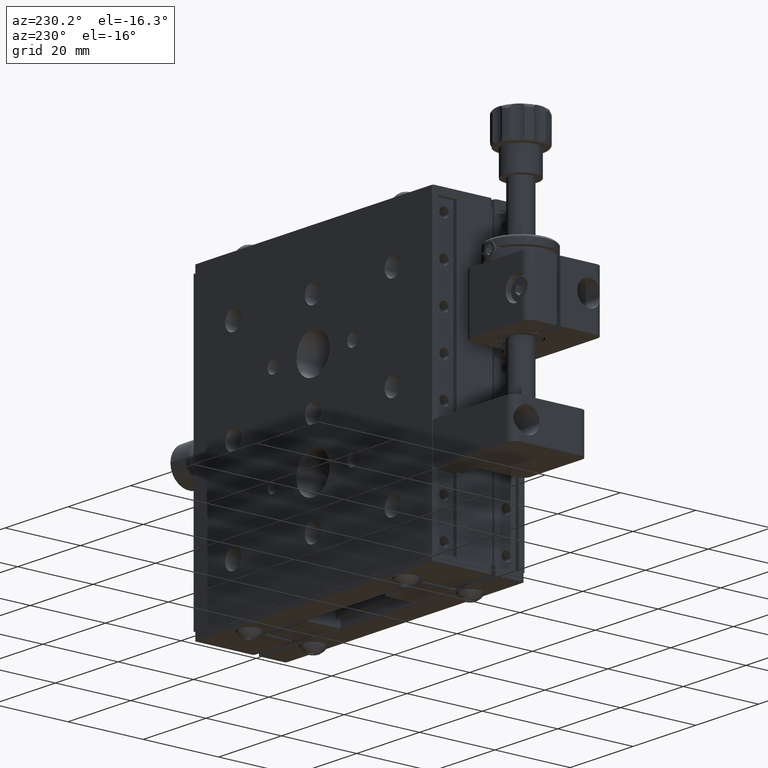
[diagram: clean part render]
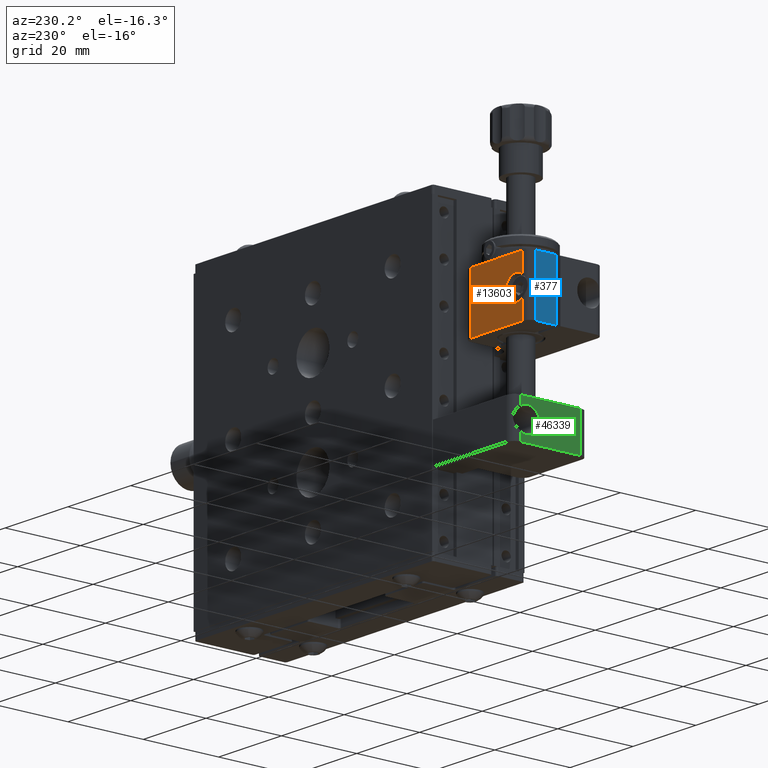
[diagram: same view with three faces highlighted in distinct colors, each labeled with its STEP entity id]
A machine part, auxiliary view with three faces highlighted in distinct colors.
Their STEP definitions:

[orange] entity #13603 — the highlighted planar face has unit normal (-0, 1, 0).
#612 = VERTEX_POINT ( 'NONE', #31382 ) ;
#692 = CARTESIAN_POINT ( 'NONE',  ( -48.75019253063127400, 5.045865631787219900, 125.0999999999999400 ) ) ;
#1394 = CARTESIAN_POINT ( 'NONE',  ( -48.75019253063127400, 5.045865631787219900, 128.3499999999999400 ) ) ;
#2337 = LINE ( 'NONE', #46738, #24564 ) ;
#2456 = CARTESIAN_POINT ( 'NONE',  ( -50.75019253063126700, 5.045865631787223500, 132.5999999999999700 ) ) ;
#4702 = VECTOR ( 'NONE', #27327, 1000.000000000000000 ) ;
#5478 = LINE ( 'NONE', #47603, #55383 ) ;
#7293 = ORIENTED_EDGE ( 'NONE', *, *, #23126, .F. ) ;
#9172 = VERTEX_POINT ( 'NONE', #16545 ) ;
#9690 = FACE_OUTER_BOUND ( 'NONE', #31144, .T. ) ;
#10022 = ORIENTED_EDGE ( 'NONE', *, *, #41751, .F. ) ;
#10945 = LINE ( 'NONE', #26748, #4702 ) ;
#11182 = ORIENTED_EDGE ( 'NONE', *, *, #27942, .F. ) ;
#13101 = CARTESIAN_POINT ( 'NONE',  ( -50.75019253063126700, 5.045865631787236800, 139.5999999999999700 ) ) ;
#13603 = ADVANCED_FACE ( 'NONE', ( #9690 ), #56304, .T. ) ;
#13897 = CIRCLE ( 'NONE', #56265, 3.250000000000002700 ) ;
#14771 = VERTEX_POINT ( 'NONE', #54504 ) ;
#15987 = CARTESIAN_POINT ( 'NONE',  ( -48.75019253063127400, 5.045865631787219900, 125.0999999999999400 ) ) ;
#16545 = CARTESIAN_POINT ( 'NONE',  ( -34.25019253063126700, 5.045865631787235000, 117.6000000000000500 ) ) ;
#17015 = ORIENTED_EDGE ( 'NONE', *, *, #26443, .T. ) ;
#18401 = CARTESIAN_POINT ( 'NONE',  ( -48.75019253063127400, 5.045865631787219900, 121.8499999999999400 ) ) ;
#19951 = VECTOR ( 'NONE', #52405, 1000.000000000000000 ) ;
#20325 = DIRECTION ( 'NONE',  ( -3.538501282865115300E-016, 5.551115123126275700E-017, -1.000000000000000000 ) ) ;
#22817 = LINE ( 'NONE', #44201, #37341 ) ;
#23126 = EDGE_CURVE ( 'NONE', #51123, #29201, #41391, .T. ) ;
#24564 = VECTOR ( 'NONE', #20325, 1000.000000000000000 ) ;
#24581 = VERTEX_POINT ( 'NONE', #18401 ) ;
#24722 = CARTESIAN_POINT ( 'NONE',  ( -50.75019253063126700, 5.045865631787219900, 127.6617376914898300 ) ) ;
#26316 = AXIS2_PLACEMENT_3D ( 'NONE', #29842, #30811, #39270 ) ;
#26443 = EDGE_CURVE ( 'NONE', #14771, #9172, #22817, .T. ) ;
#26748 = CARTESIAN_POINT ( 'NONE',  ( -52.75019253063126700, 5.045865631787219900, 132.5999999999999700 ) ) ;
#27327 = DIRECTION ( 'NONE',  ( -1.000000000000000000, -1.396345096814190600E-015, 4.807811143335905100E-016 ) ) ;
#27639 = CIRCLE ( 'NONE', #34746, 3.250000000000002700 ) ;
#27942 = EDGE_CURVE ( 'NONE', #29201, #41559, #27639, .T. ) ;
#29201 = VERTEX_POINT ( 'NONE', #24722 ) ;
#29842 = CARTESIAN_POINT ( 'NONE',  ( -34.25019253063126000, 5.045865631787242100, 139.6000000000002500 ) ) ;
#30811 = DIRECTION ( 'NONE',  ( -1.396345096814194500E-015, 1.000000000000000000, 5.551115123126325000E-017 ) ) ;
#31144 = EDGE_LOOP ( 'NONE', ( #11182, #7293, #39111, #17015, #10022, #32470, #44540, #35567 ) ) ;
#31382 = CARTESIAN_POINT ( 'NONE',  ( -50.75019253063127400, 5.045865631787216400, 122.5382623085101700 ) ) ;
#31738 = DIRECTION ( 'NONE',  ( -1.396345096814194700E-015, 1.000000000000000000, 5.551115123125289700E-017 ) ) ;
#32358 = DIRECTION ( 'NONE',  ( 0.0000000000000000000, 0.0000000000000000000, -1.000000000000000000 ) ) ;
#32470 = ORIENTED_EDGE ( 'NONE', *, *, #55536, .F. ) ;
#34746 = AXIS2_PLACEMENT_3D ( 'NONE', #692, #31738, #36123 ) ;
#35567 = ORIENTED_EDGE ( 'NONE', *, *, #49885, .F. ) ;
#36123 = DIRECTION ( 'NONE',  ( 0.0000000000000000000, 0.0000000000000000000, -1.000000000000000000 ) ) ;
#36766 = CARTESIAN_POINT ( 'NONE',  ( -48.75019253063127400, 5.045865631787219900, 125.0999999999999400 ) ) ;
#37341 = VECTOR ( 'NONE', #53494, 1000.000000000000000 ) ;
#37346 = DIRECTION ( 'NONE',  ( -1.396345096814194700E-015, 1.000000000000000000, 5.551115123125289700E-017 ) ) ;
#37460 = DIRECTION ( 'NONE',  ( 0.0000000000000000000, 0.0000000000000000000, -1.000000000000000000 ) ) ;
#38193 = EDGE_CURVE ( 'NONE', #14771, #51123, #10945, .T. ) ;
#39058 = CARTESIAN_POINT ( 'NONE',  ( -50.75019253063127400, 5.045865631787212800, 117.6000000000000500 ) ) ;
#39111 = ORIENTED_EDGE ( 'NONE', *, *, #38193, .F. ) ;
#39120 = DIRECTION ( 'NONE',  ( 1.000000000000000000, 1.396345096814190600E-015, -3.538501282865062500E-016 ) ) ;
#39270 = DIRECTION ( 'NONE',  ( -3.538501282865115300E-016, 5.551115123126275700E-017, -1.000000000000000000 ) ) ;
#39735 = AXIS2_PLACEMENT_3D ( 'NONE', #36766, #37346, #32358 ) ;
#41391 = LINE ( 'NONE', #13101, #19951 ) ;
#41559 = VERTEX_POINT ( 'NONE', #1394 ) ;
#41751 = EDGE_CURVE ( 'NONE', #51323, #9172, #5478, .T. ) ;
#44201 = CARTESIAN_POINT ( 'NONE',  ( -34.25019253063126000, 5.045865631787242100, 139.6000000000002500 ) ) ;
#44540 = ORIENTED_EDGE ( 'NONE', *, *, #46999, .F. ) ;
#46738 = CARTESIAN_POINT ( 'NONE',  ( -50.75019253063126700, 5.045865631787236800, 139.5999999999999700 ) ) ;
#46811 = CIRCLE ( 'NONE', #39735, 3.250000000000002700 ) ;
#46999 = EDGE_CURVE ( 'NONE', #24581, #612, #13897, .T. ) ;
#47603 = CARTESIAN_POINT ( 'NONE',  ( -34.25019253063126700, 5.045865631787235000, 117.6000000000000500 ) ) ;
#49885 = EDGE_CURVE ( 'NONE', #41559, #24581, #46811, .T. ) ;
#51123 = VERTEX_POINT ( 'NONE', #2456 ) ;
#51323 = VERTEX_POINT ( 'NONE', #39058 ) ;
#52405 = DIRECTION ( 'NONE',  ( -3.538501282865115300E-016, 5.551115123126275700E-017, -1.000000000000000000 ) ) ;
#53494 = DIRECTION ( 'NONE',  ( -3.538501282865115300E-016, 5.551115123126275700E-017, -1.000000000000000000 ) ) ;
#54504 = CARTESIAN_POINT ( 'NONE',  ( -34.25019253063125300, 5.045865631787245700, 132.6000000000002200 ) ) ;
#55383 = VECTOR ( 'NONE', #39120, 1000.000000000000000 ) ;
#55536 = EDGE_CURVE ( 'NONE', #612, #51323, #2337, .T. ) ;
#55824 = DIRECTION ( 'NONE',  ( -1.396345096814194700E-015, 1.000000000000000000, 5.551115123125289700E-017 ) ) ;
#56265 = AXIS2_PLACEMENT_3D ( 'NONE', #15987, #55824, #37460 ) ;
#56304 = PLANE ( 'NONE',  #26316 ) ;

[blue] entity #377 — the highlighted planar face has unit normal (-1, -0, 0).
#377 = ADVANCED_FACE ( 'NONE', ( #11963 ), #6718, .T. ) ;
#566 = CARTESIAN_POINT ( 'NONE',  ( -52.75019253063127400, 3.045865631787192800, 117.6000000000000500 ) ) ;
#1461 = VERTEX_POINT ( 'NONE', #566 ) ;
#2115 = EDGE_CURVE ( 'NONE', #56871, #46167, #54895, .T. ) ;
#6718 = PLANE ( 'NONE',  #17264 ) ;
#11963 = FACE_OUTER_BOUND ( 'NONE', #48104, .T. ) ;
#12607 = EDGE_CURVE ( 'NONE', #25954, #1461, #40295, .T. ) ;
#15446 = DIRECTION ( 'NONE',  ( -3.538501282865115300E-016, 5.551115123126275700E-017, -1.000000000000000000 ) ) ;
#15840 = ORIENTED_EDGE ( 'NONE', *, *, #12607, .F. ) ;
#17264 = AXIS2_PLACEMENT_3D ( 'NONE', #20189, #37938, #51069 ) ;
#20189 = CARTESIAN_POINT ( 'NONE',  ( -52.75019253063126000, 3.045865631787190200, 139.5999999999999700 ) ) ;
#21697 = LINE ( 'NONE', #27040, #29297 ) ;
#23736 = VECTOR ( 'NONE', #33063, 1000.000000000000000 ) ;
#25954 = VERTEX_POINT ( 'NONE', #57224 ) ;
#26056 = ORIENTED_EDGE ( 'NONE', *, *, #56444, .T. ) ;
#27040 = CARTESIAN_POINT ( 'NONE',  ( -52.75019253063126000, 3.045865631787190200, 139.5999999999999700 ) ) ;
#29297 = VECTOR ( 'NONE', #15446, 1000.000000000000000 ) ;
#31158 = DIRECTION ( 'NONE',  ( -3.538501282865115300E-016, 5.551115123126275700E-017, -1.000000000000000000 ) ) ;
#32714 = DIRECTION ( 'NONE',  ( -1.396345096814194700E-015, 1.000000000000000000, 5.551115123125289700E-017 ) ) ;
#33063 = DIRECTION ( 'NONE',  ( -1.080940828454776300E-015, 1.000000000000000000, 5.551115123125278600E-017 ) ) ;
#37335 = CARTESIAN_POINT ( 'NONE',  ( -52.75019253063126000, -2.454134368212812900, 132.5999999999999700 ) ) ;
#37938 = DIRECTION ( 'NONE',  ( -1.000000000000000000, -1.080940828454776300E-015, 3.538501282865057600E-016 ) ) ;
#40295 = LINE ( 'NONE', #41934, #23736 ) ;
#41934 = CARTESIAN_POINT ( 'NONE',  ( -52.75019253063127400, 3.045865631787192800, 117.6000000000000500 ) ) ;
#42338 = VECTOR ( 'NONE', #32714, 1000.000000000000000 ) ;
#42608 = ORIENTED_EDGE ( 'NONE', *, *, #50247, .F. ) ;
#46107 = VECTOR ( 'NONE', #31158, 1000.000000000000000 ) ;
#46167 = VERTEX_POINT ( 'NONE', #48765 ) ;
#48104 = EDGE_LOOP ( 'NONE', ( #51161, #26056, #15840, #42608 ) ) ;
#48765 = CARTESIAN_POINT ( 'NONE',  ( -52.75019253063126700, 3.045865631787222600, 132.5999999999999700 ) ) ;
#50247 = EDGE_CURVE ( 'NONE', #56871, #25954, #55127, .T. ) ;
#50471 = CARTESIAN_POINT ( 'NONE',  ( -52.75019253063123900, -14.95413436821288200, 132.5999999999999700 ) ) ;
#51069 = DIRECTION ( 'NONE',  ( -1.080940828454776300E-015, 1.000000000000000000, 5.551115123125279200E-017 ) ) ;
#51161 = ORIENTED_EDGE ( 'NONE', *, *, #2115, .T. ) ;
#53161 = CARTESIAN_POINT ( 'NONE',  ( -52.75019253063118900, -2.454134368212833800, 139.5999999999999400 ) ) ;
#54895 = LINE ( 'NONE', #50471, #42338 ) ;
#55127 = LINE ( 'NONE', #53161, #46107 ) ;
#56444 = EDGE_CURVE ( 'NONE', #46167, #1461, #21697, .T. ) ;
#56871 = VERTEX_POINT ( 'NONE', #37335 ) ;
#57224 = CARTESIAN_POINT ( 'NONE',  ( -52.75019253063126000, -2.454134368212832900, 117.6000000000000500 ) ) ;

[green] entity #46339 — the highlighted planar face has unit normal (1, -0, -0).
#312 = VERTEX_POINT ( 'NONE', #6155 ) ;
#703 = LINE ( 'NONE', #18798, #11108 ) ;
#1739 = AXIS2_PLACEMENT_3D ( 'NONE', #41234, #19225, #23645 ) ;
#1979 = AXIS2_PLACEMENT_3D ( 'NONE', #54937, #6119, #41773 ) ;
#2574 = EDGE_CURVE ( 'NONE', #46292, #4330, #13687, .T. ) ;
#3849 = VERTEX_POINT ( 'NONE', #53135 ) ;
#4330 = VERTEX_POINT ( 'NONE', #40319 ) ;
#6119 = DIRECTION ( 'NONE',  ( -1.000000000000000000, 2.392189880203610800E-028, 5.551115123113316200E-017 ) ) ;
#6155 = CARTESIAN_POINT ( 'NONE',  ( -52.75019253063116100, 7.145865631787669900, 91.09999999999989500 ) ) ;
#7968 = DIRECTION ( 'NONE',  ( -3.577867169202054200E-015, -1.000000000000000000, 1.986115255144424100E-031 ) ) ;
#11108 = VECTOR ( 'NONE', #27709, 1000.000000000000000 ) ;
#11145 = VECTOR ( 'NONE', #7968, 1000.000000000000000 ) ;
#12561 = DIRECTION ( 'NONE',  ( -1.000000000000000000, 2.392189880203610800E-028, 5.551115123113316200E-017 ) ) ;
#13687 = CIRCLE ( 'NONE', #24348, 3.250000000000016900 ) ;
#13771 = EDGE_CURVE ( 'NONE', #20593, #52314, #22840, .T. ) ;
#17016 = CIRCLE ( 'NONE', #25765, 3.250000000000016900 ) ;
#17276 = DIRECTION ( 'NONE',  ( 0.0000000000000000000, 0.0000000000000000000, -1.000000000000000000 ) ) ;
#17809 = LINE ( 'NONE', #24883, #27545 ) ;
#18077 = EDGE_CURVE ( 'NONE', #19310, #20593, #25738, .T. ) ;
#18657 = CARTESIAN_POINT ( 'NONE',  ( -52.75019253063116100, 7.145865631787669900, 101.1000000000000400 ) ) ;
#18798 = CARTESIAN_POINT ( 'NONE',  ( -52.75019253063116100, 7.145865631787669900, 91.09999999999989500 ) ) ;
#19225 = DIRECTION ( 'NONE',  ( 1.000000000000000000, -3.577867169202054200E-015, -5.551115123113316200E-017 ) ) ;
#19310 = VERTEX_POINT ( 'NONE', #26363 ) ;
#19343 = CARTESIAN_POINT ( 'NONE',  ( -52.75019253063116800, 5.345865631787678000, 96.10000000000003700 ) ) ;
#20096 = ORIENTED_EDGE ( 'NONE', *, *, #52031, .F. ) ;
#20593 = VERTEX_POINT ( 'NONE', #53087 ) ;
#22840 = LINE ( 'NONE', #51191, #55344 ) ;
#23645 = DIRECTION ( 'NONE',  ( 3.577867169202054200E-015, 1.000000000000000000, -1.986115255144424100E-031 ) ) ;
#24348 = AXIS2_PLACEMENT_3D ( 'NONE', #19343, #50227, #54692 ) ;
#24883 = CARTESIAN_POINT ( 'NONE',  ( -52.75019253063116100, 7.145865631787669900, 101.1000000000000400 ) ) ;
#25738 = LINE ( 'NONE', #34925, #11145 ) ;
#25765 = AXIS2_PLACEMENT_3D ( 'NONE', #25977, #12561, #17276 ) ;
#25927 = ORIENTED_EDGE ( 'NONE', *, *, #36587, .T. ) ;
#25977 = CARTESIAN_POINT ( 'NONE',  ( -52.75019253063116800, 5.345865631787678000, 96.10000000000003700 ) ) ;
#26363 = CARTESIAN_POINT ( 'NONE',  ( -52.75019253063116100, 7.145865631787669900, 101.1000000000000400 ) ) ;
#27545 = VECTOR ( 'NONE', #55249, 1000.000000000000000 ) ;
#27709 = DIRECTION ( 'NONE',  ( -3.577867169202054200E-015, -1.000000000000000000, 1.986115255144424100E-031 ) ) ;
#28661 = VERTEX_POINT ( 'NONE', #42233 ) ;
#29206 = DIRECTION ( 'NONE',  ( -5.551115123130633000E-017, -3.553194787710821000E-044, -1.000000000000000000 ) ) ;
#30207 = CARTESIAN_POINT ( 'NONE',  ( -52.75019253063121700, -8.854134368212403000, 91.09999999999989500 ) ) ;
#30670 = ORIENTED_EDGE ( 'NONE', *, *, #2574, .F. ) ;
#32454 = EDGE_CURVE ( 'NONE', #19310, #4330, #17809, .T. ) ;
#33143 = CIRCLE ( 'NONE', #1979, 3.250000000000016900 ) ;
#34925 = CARTESIAN_POINT ( 'NONE',  ( -52.75019253063116100, 7.145865631787669900, 101.1000000000000400 ) ) ;
#36587 = EDGE_CURVE ( 'NONE', #312, #52314, #703, .T. ) ;
#36761 = CARTESIAN_POINT ( 'NONE',  ( -52.75019253063116800, 5.345865631787678000, 99.35000000000002300 ) ) ;
#39200 = VECTOR ( 'NONE', #44915, 1000.000000000000000 ) ;
#40319 = CARTESIAN_POINT ( 'NONE',  ( -52.75019253063116100, 7.145865631787669900, 98.80601182554698900 ) ) ;
#41234 = CARTESIAN_POINT ( 'NONE',  ( -52.75019253063116100, 7.145865631787669900, 101.1000000000000400 ) ) ;
#41773 = DIRECTION ( 'NONE',  ( 0.0000000000000000000, 0.0000000000000000000, -1.000000000000000000 ) ) ;
#42233 = CARTESIAN_POINT ( 'NONE',  ( -52.75019253063116800, 7.145865631787669900, 93.39398817445292900 ) ) ;
#43693 = FACE_OUTER_BOUND ( 'NONE', #46073, .T. ) ;
#44268 = EDGE_CURVE ( 'NONE', #3849, #46292, #17016, .T. ) ;
#44856 = EDGE_CURVE ( 'NONE', #28661, #312, #52350, .T. ) ;
#44915 = DIRECTION ( 'NONE',  ( -5.551115123130633000E-017, -3.553194787710821000E-044, -1.000000000000000000 ) ) ;
#45472 = ORIENTED_EDGE ( 'NONE', *, *, #32454, .T. ) ;
#46073 = EDGE_LOOP ( 'NONE', ( #45472, #30670, #55242, #20096, #52987, #25927, #46820, #54523 ) ) ;
#46292 = VERTEX_POINT ( 'NONE', #36761 ) ;
#46339 = ADVANCED_FACE ( 'NONE', ( #43693 ), #50294, .F. ) ;
#46820 = ORIENTED_EDGE ( 'NONE', *, *, #13771, .F. ) ;
#50227 = DIRECTION ( 'NONE',  ( -1.000000000000000000, 2.392189880203610800E-028, 5.551115123113316200E-017 ) ) ;
#50294 = PLANE ( 'NONE',  #1739 ) ;
#51191 = CARTESIAN_POINT ( 'NONE',  ( -52.75019253063121700, -8.854134368212403000, 101.1000000000000400 ) ) ;
#52031 = EDGE_CURVE ( 'NONE', #28661, #3849, #33143, .T. ) ;
#52314 = VERTEX_POINT ( 'NONE', #30207 ) ;
#52350 = LINE ( 'NONE', #18657, #39200 ) ;
#52987 = ORIENTED_EDGE ( 'NONE', *, *, #44856, .T. ) ;
#53087 = CARTESIAN_POINT ( 'NONE',  ( -52.75019253063121700, -8.854134368212403000, 101.1000000000000400 ) ) ;
#53135 = CARTESIAN_POINT ( 'NONE',  ( -52.75019253063116800, 5.345865631787678000, 92.85000000000003700 ) ) ;
#54523 = ORIENTED_EDGE ( 'NONE', *, *, #18077, .F. ) ;
#54692 = DIRECTION ( 'NONE',  ( 0.0000000000000000000, 0.0000000000000000000, -1.000000000000000000 ) ) ;
#54937 = CARTESIAN_POINT ( 'NONE',  ( -52.75019253063116800, 5.345865631787678000, 96.10000000000003700 ) ) ;
#55242 = ORIENTED_EDGE ( 'NONE', *, *, #44268, .F. ) ;
#55249 = DIRECTION ( 'NONE',  ( -5.551115123130633000E-017, -3.553194787710821000E-044, -1.000000000000000000 ) ) ;
#55344 = VECTOR ( 'NONE', #29206, 1000.000000000000000 ) ;